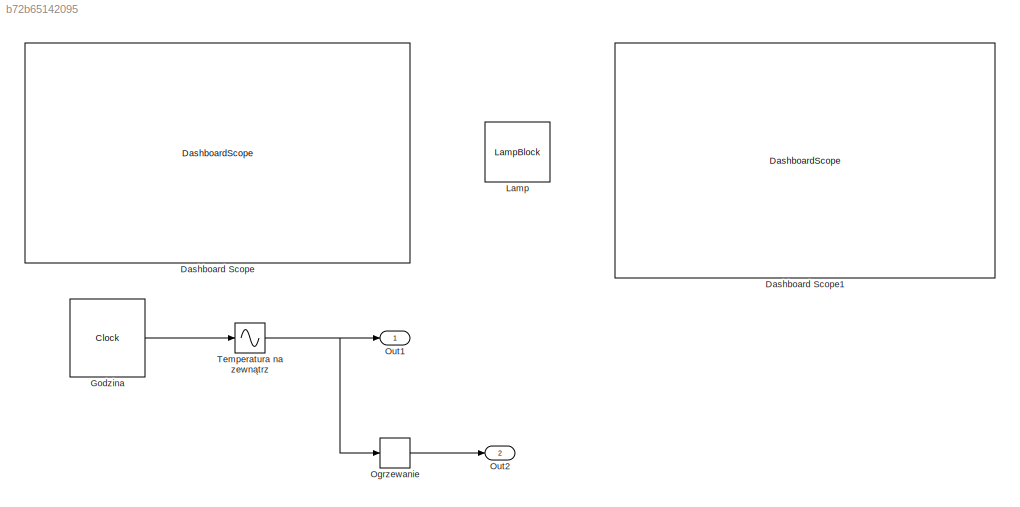
MODEL slx_b72b65142095
KIND model
CONFIG AbsTol = auto
CONFIG EnableMultiTasking = off
CONFIG FixedStep = 1
CONFIG MaxStep = auto
CONFIG MinStep = auto
CONFIG RelTol = 1e-3
CONFIG SampleTimeConstraint = Unconstrained
CONFIG Solver = FixedStepAuto
CONFIG SolverName = FixedStepAuto
CONFIG StartTime = 1
CONFIG StopTime = intervals
BLOCK [DashboardScope] Dashboard Scope
  ScaleAtStop = off
  TimeSpan = 288
  WebBlockId = 31
  Ymax = 50
  Ymin = -15
BLOCK [DashboardScope] Dashboard Scope1
  TimeSpan = 288
  WebBlockId = 45
  Ymax = 2
  Ymin = 0
BLOCK [Clock] Godzina 
  Decimation = 1
  DisplayTime = on
BLOCK [LampBlock] Lamp
  WebBlockId = 33
BLOCK [Relay] Ogrzewanie
  InputProcessing = Elements as channels (sample based)
  OffOutputValue = 1
  OffSwitchValue = 18
  OnOutputValue = 0
  OnSwitchValue = 22
BLOCK [Outport] Out1
  IconDisplay = Port number
BLOCK [Outport] Out2
  IconDisplay = Port number
  Port = 2
BLOCK [Sin] Temperatura na zewnątrz
  Amplitude = 18
  Bias = 10
  Frequency = 2*pi/intervals
  Phase = -pi/2
  Ports = [1, 1]
  SampleTime = 0
  TimeSource = Use external signal
LINE Godzina :1 -> Temperatura na zewnątrz:1
LINE Ogrzewanie:1 -> Out2:1
NET Temperatura na zewnątrz:1 -> Ogrzewanie:1, Out1:1
note: NET lines group one-source signal fan-out (src -> all destinations, sorted); 1:1 wires keep LINE
